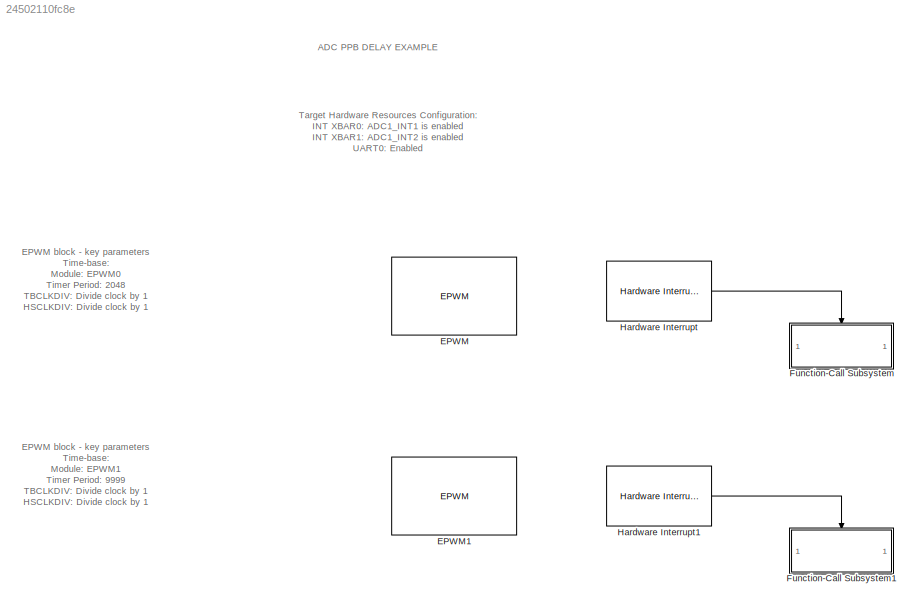
MODEL slx_24502110fc8e
KIND model
CONFIG AbsTol = auto
CONFIG EnableMultiTasking = off
CONFIG FixedStep = auto
CONFIG MaxStep = auto
CONFIG MinStep = auto
CONFIG RelTol = 1e-3
CONFIG SampleTimeConstraint = Unconstrained
CONFIG SolverName = FixedStepAuto
CONFIG StartTime = 0.0
CONFIG StopTime = 10.0
BLOCK [Reference] EPWM  REF=peripheral_library_blocks_am263x/EPWM
  SourceBlock = peripheral_library_blocks_am263x/EPWM
  SourceType = EPWM_AM263X
BLOCK [Reference] EPWM1  REF=peripheral_library_blocks_am263x/EPWM
  SourceBlock = peripheral_library_blocks_am263x/EPWM
  SourceType = EPWM_AM263X
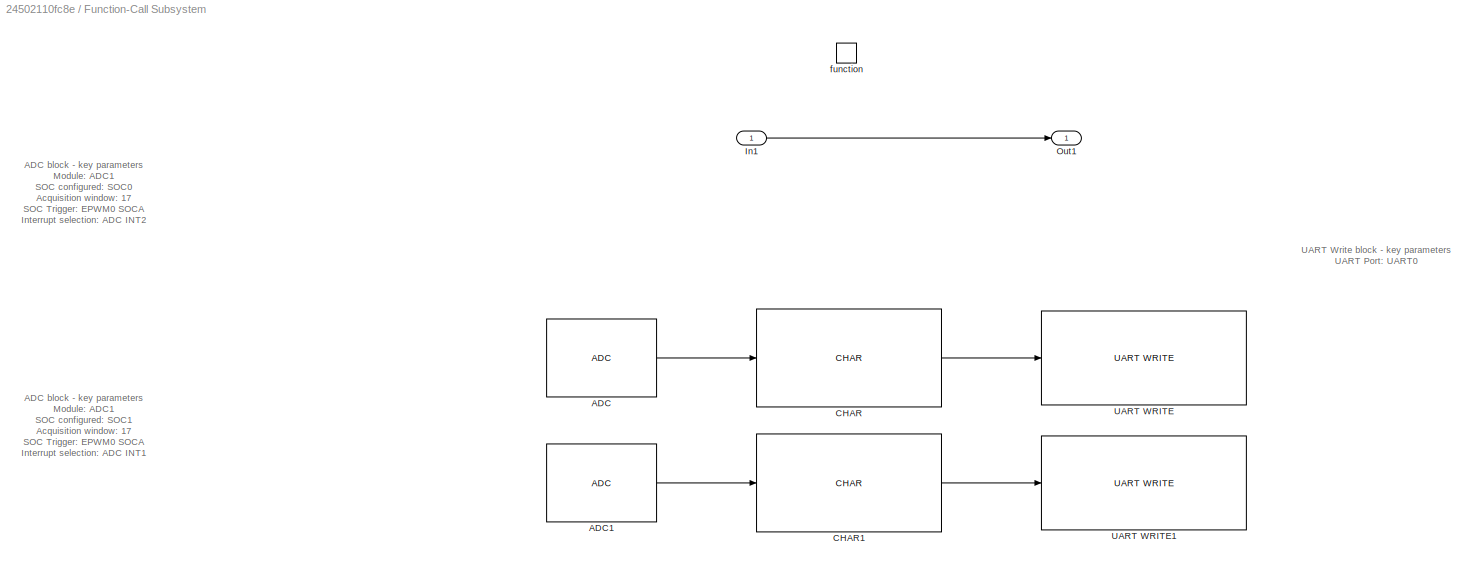
BLOCK [SubSystem] Function-Call Subsystem
  TreatAsAtomicUnit = on
BLOCK [Reference] Function-Call Subsystem/ADC  REF=peripheral_library_blocks_am263x/ADC
  SourceBlock = peripheral_library_blocks_am263x/ADC
  SourceType = ADC_AM263X
BLOCK [Reference] Function-Call Subsystem/ADC1  REF=peripheral_library_blocks_am263x/ADC
  SourceBlock = peripheral_library_blocks_am263x/ADC
  SourceType = ADC_AM263X
BLOCK [Reference] Function-Call Subsystem/CHAR  REF=peripheral_library_blocks_am263x/CHAR
  SourceBlock = peripheral_library_blocks_am263x/CHAR
  SourceType = CHAR
BLOCK [Reference] Function-Call Subsystem/CHAR1  REF=peripheral_library_blocks_am263x/CHAR
  SourceBlock = peripheral_library_blocks_am263x/CHAR
  SourceType = CHAR
BLOCK [Inport] Function-Call Subsystem/In1
BLOCK [Outport] Function-Call Subsystem/Out1
BLOCK [Reference] Function-Call Subsystem/UART WRITE  REF=peripheral_library_blocks_am263x/UART WRITE
  SourceBlock = peripheral_library_blocks_am263x/UART WRITE
  SourceType = UART_WRITE_AM263X
BLOCK [Reference] Function-Call Subsystem/UART WRITE1  REF=peripheral_library_blocks_am263x/UART WRITE
  SourceBlock = peripheral_library_blocks_am263x/UART WRITE
  SourceType = UART_WRITE_AM263X
BLOCK [TriggerPort] Function-Call Subsystem/function
  StatesWhenEnabling = held
  TriggerType = function-call
  VariantControl = (inherit)
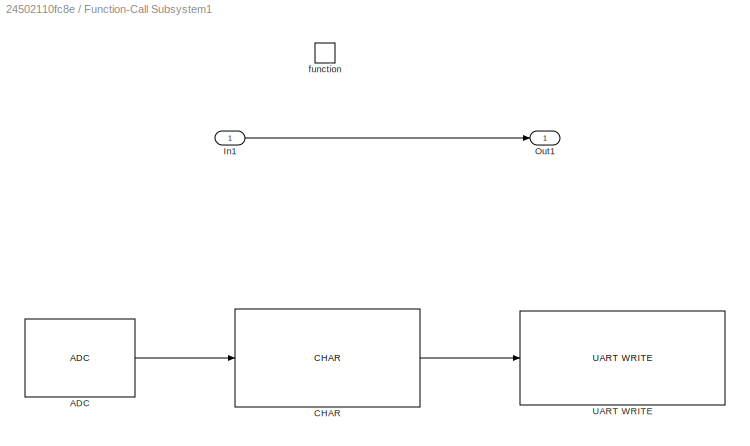
BLOCK [SubSystem] Function-Call Subsystem1
  TreatAsAtomicUnit = on
BLOCK [Reference] Function-Call Subsystem1/ADC  REF=peripheral_library_blocks_am263x/ADC
  SourceBlock = peripheral_library_blocks_am263x/ADC
  SourceType = ADC_AM263X
BLOCK [Reference] Function-Call Subsystem1/CHAR  REF=peripheral_library_blocks_am263x/CHAR
  SourceBlock = peripheral_library_blocks_am263x/CHAR
  SourceType = CHAR
BLOCK [Inport] Function-Call Subsystem1/In1
BLOCK [Outport] Function-Call Subsystem1/Out1
BLOCK [Reference] Function-Call Subsystem1/UART WRITE  REF=peripheral_library_blocks_am263x/UART WRITE
  SourceBlock = peripheral_library_blocks_am263x/UART WRITE
  SourceType = UART_WRITE_AM263X
BLOCK [TriggerPort] Function-Call Subsystem1/function
  StatesWhenEnabling = held
  TriggerType = function-call
  VariantControl = (inherit)
BLOCK [Reference] Hardware Interrupt  REF=HWI_lib/Hardware Interrupt
  SourceBlock = HWI_lib/Hardware Interrupt
  SourceProductName = Embedded Coder Support Package for AM263x - HWI Block
BLOCK [Reference] Hardware Interrupt1  REF=HWI_lib/Hardware Interrupt
  SourceBlock = HWI_lib/Hardware Interrupt
  SourceProductName = Embedded Coder Support Package for AM263x - HWI Block
ANNOTATION (root): EPWM block - key parameters Time-base: Module: EPWM0 Timer Period: 2048 TBCLKDIV: Divide clock by 1 HSCLKDIV: Divide clock by 1 Counter mode: Up count Event-Trigger: Enable ADC SOC: True No of event for start of conversion to be generated: 1 event Enable SOCA event count: True
ANNOTATION (root): EPWM block - key parameters Time-base: Module: EPWM1 Timer Period: 9999 TBCLKDIV: Divide clock by 1 HSCLKDIV: Divide clock by 1 Counter mode: Up cpunt Event-Trigger: Enable ADC SOC: True No of event for start of conversion to be generated: 1 event Enable SOCA event count: True
ANNOTATION (root): Target Hardware Resources Configuration: INT XBAR0: ADC1_INT1 is enabled INT XBAR1: ADC1_INT2 is enabled UART0: Enabled
ANNOTATION (root): ADC PPB DELAY EXAMPLE
ANNOTATION Function-Call Subsystem: ADC block - key parameters Module: ADC1 SOC configured: SOC0 Acquisition window: 17 SOC Trigger: EPWM0 SOCA Interrupt selection: ADC INT2 Interrupt Source: SOC0 Channel: Channel 0 PPB Block : PPB block 1 PPB SOC: SOC0
ANNOTATION Function-Call Subsystem: ADC block - key parameters Module: ADC1 SOC configured: SOC1 Acquisition window: 17 SOC Trigger: EPWM0 SOCA Interrupt selection: ADC INT1 Interrupt Source: SOC1 Channel: Channel 1 PPB Block : PPB block 1 PPB SOC: SOC0
ANNOTATION Function-Call Subsystem: UART Write block - key parameters UART Port: UART0
LINE Function-Call Subsystem/ADC1:1 -> Function-Call Subsystem/CHAR1:1
LINE Function-Call Subsystem/ADC:1 -> Function-Call Subsystem/CHAR:1
LINE Function-Call Subsystem/CHAR1:1 -> Function-Call Subsystem/UART WRITE1:1
LINE Function-Call Subsystem/CHAR:1 -> Function-Call Subsystem/UART WRITE:1
LINE Function-Call Subsystem/In1:1 -> Function-Call Subsystem/Out1:1
LINE Function-Call Subsystem1/ADC:1 -> Function-Call Subsystem1/CHAR:1
LINE Function-Call Subsystem1/CHAR:1 -> Function-Call Subsystem1/UART WRITE:1
LINE Function-Call Subsystem1/In1:1 -> Function-Call Subsystem1/Out1:1
LINE Hardware Interrupt1:1 -> Function-Call Subsystem1:trigger
LINE Hardware Interrupt:1 -> Function-Call Subsystem:trigger
